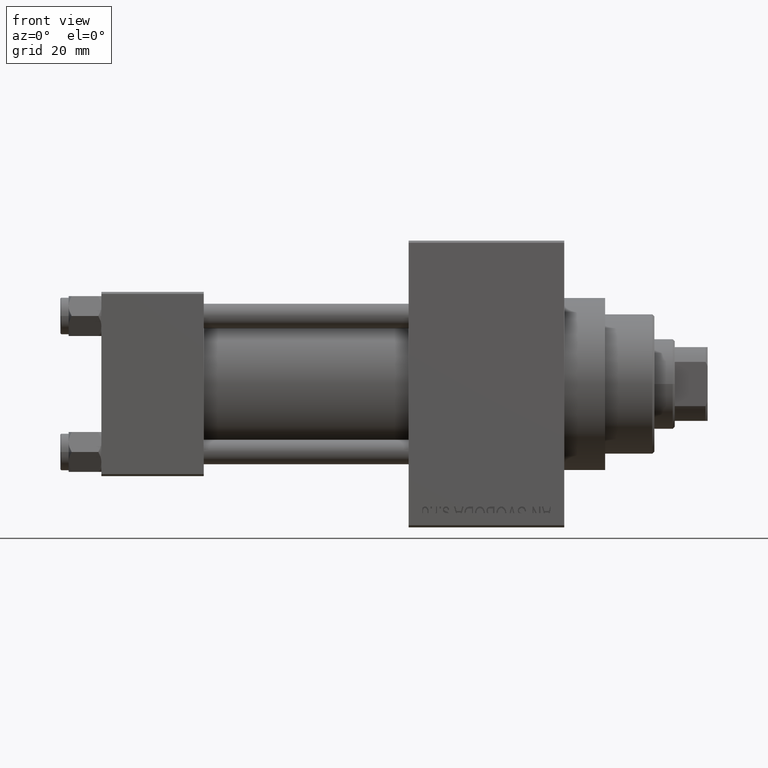
[diagram: clean part render]
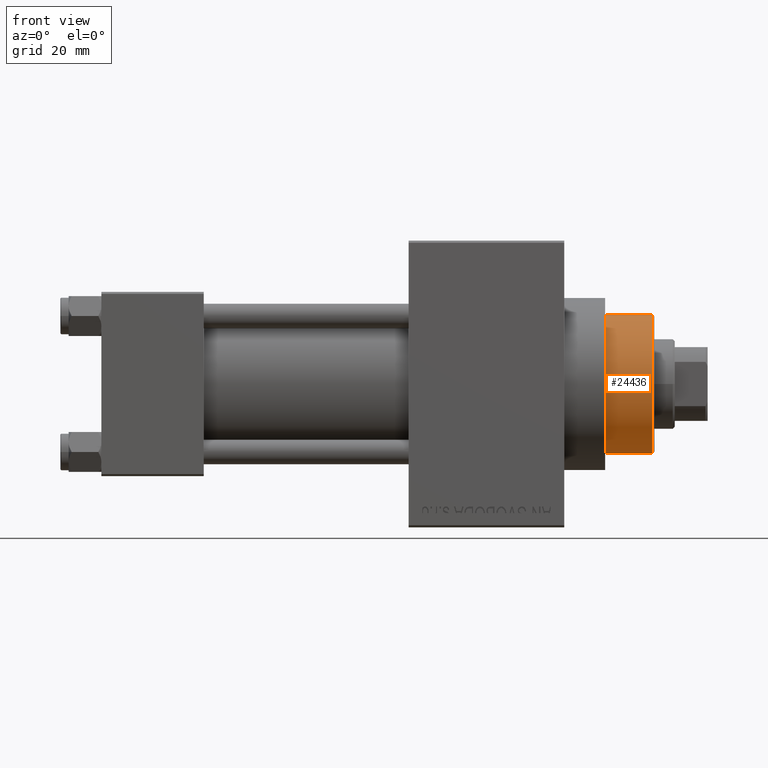
[diagram: same view with one face highlighted and labeled with its STEP entity id]
A machine part, front view. The second image highlights one B-rep face of the part: STEP entity #24436.
In plain terms, the highlighted cylindrical surface (partial cylindrical patch) has radius 17 mm, axis along (-1, 0, 0).
Its self-contained STEP definition (entity closure, byte-faithful):
#651 = CARTESIAN_POINT ( 'NONE',  ( -17.00000000000000000, 0.000000000000000000, 55.26000000000000512 ) ) ;
#2338 = VECTOR ( 'NONE', #29514, 1000.000000000000000 ) ;
#3271 = VERTEX_POINT ( 'NONE', #7940 ) ;
#3782 = AXIS2_PLACEMENT_3D ( 'NONE', #25153, #42579, #35430 ) ;
#4535 = CIRCLE ( 'NONE', #3782, 17.00000000000000000 ) ;
#5252 = EDGE_CURVE ( 'NONE', #9164, #26226, #4535, .T. ) ;
#7133 = LINE ( 'NONE', #33325, #2338 ) ;
#7940 = CARTESIAN_POINT ( 'NONE',  ( -17.00000000000000000, 0.000000000000000000, 54.76000000000001222 ) ) ;
#8264 = DIRECTION ( 'NONE',  ( -1.000000000000000000, 0.000000000000000000, 0.000000000000000000 ) ) ;
#9164 = VERTEX_POINT ( 'NONE', #19297 ) ;
#10688 = DIRECTION ( 'NONE',  ( -0.000000000000000000, -0.000000000000000000, -1.000000000000000000 ) ) ;
#10864 = CARTESIAN_POINT ( 'NONE',  ( 17.00000000000000000, 2.081899558550500280E-15, 54.76000000000001222 ) ) ;
#12049 = EDGE_CURVE ( 'NONE', #27896, #9164, #7133, .T. ) ;
#13312 = CARTESIAN_POINT ( 'NONE',  ( -17.00000000000000000, 0.000000000000000000, 43.25999999999999801 ) ) ;
#14500 = LINE ( 'NONE', #651, #36148 ) ;
#17411 = CARTESIAN_POINT ( 'NONE',  ( 0.000000000000000000, 0.000000000000000000, 54.76000000000001222 ) ) ;
#19297 = CARTESIAN_POINT ( 'NONE',  ( 17.00000000000000000, 2.081899558550500280E-15, 43.25999999999999801 ) ) ;
#19908 = EDGE_CURVE ( 'NONE', #3271, #26226, #14500, .T. ) ;
#20240 = ORIENTED_EDGE ( 'NONE', *, *, #5252, .T. ) ;
#24436 = ADVANCED_FACE ( 'NONE', ( #41409 ), #38316, .T. ) ;
#25153 = CARTESIAN_POINT ( 'NONE',  ( 0.000000000000000000, 0.000000000000000000, 43.25999999999999801 ) ) ;
#25205 = EDGE_CURVE ( 'NONE', #3271, #27896, #25515, .T. ) ;
#25515 = CIRCLE ( 'NONE', #42279, 17.00000000000000000 ) ;
#26226 = VERTEX_POINT ( 'NONE', #13312 ) ;
#27081 = ORIENTED_EDGE ( 'NONE', *, *, #19908, .F. ) ;
#27896 = VERTEX_POINT ( 'NONE', #10864 ) ;
#28846 = DIRECTION ( 'NONE',  ( 1.000000000000000000, 0.000000000000000000, 0.000000000000000000 ) ) ;
#29514 = DIRECTION ( 'NONE',  ( -0.000000000000000000, -0.000000000000000000, -1.000000000000000000 ) ) ;
#33325 = CARTESIAN_POINT ( 'NONE',  ( 17.00000000000000000, 2.081899558550500280E-15, 55.26000000000000512 ) ) ;
#34717 = CARTESIAN_POINT ( 'NONE',  ( 0.000000000000000000, 0.000000000000000000, 55.26000000000000512 ) ) ;
#35430 = DIRECTION ( 'NONE',  ( 1.000000000000000000, 0.000000000000000000, 0.000000000000000000 ) ) ;
#35868 = EDGE_LOOP ( 'NONE', ( #38822, #46127, #20240, #27081 ) ) ;
#36148 = VECTOR ( 'NONE', #10688, 1000.000000000000000 ) ;
#38316 = CYLINDRICAL_SURFACE ( 'NONE', #42245, 17.00000000000000000 ) ;
#38822 = ORIENTED_EDGE ( 'NONE', *, *, #25205, .T. ) ;
#40942 = DIRECTION ( 'NONE',  ( -0.000000000000000000, -0.000000000000000000, -1.000000000000000000 ) ) ;
#41409 = FACE_OUTER_BOUND ( 'NONE', #35868, .T. ) ;
#42245 = AXIS2_PLACEMENT_3D ( 'NONE', #34717, #40942, #8264 ) ;
#42279 = AXIS2_PLACEMENT_3D ( 'NONE', #17411, #42950, #28846 ) ;
#42579 = DIRECTION ( 'NONE',  ( 0.000000000000000000, 0.000000000000000000, 1.000000000000000000 ) ) ;
#42950 = DIRECTION ( 'NONE',  ( 0.000000000000000000, 0.000000000000000000, -1.000000000000000000 ) ) ;
#46127 = ORIENTED_EDGE ( 'NONE', *, *, #12049, .T. ) ;